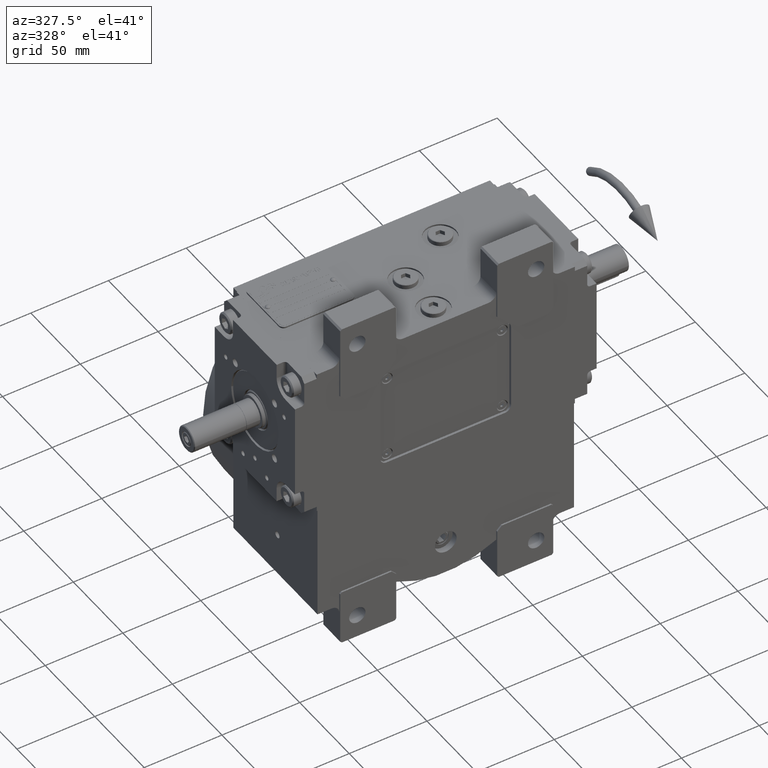
[diagram: clean part render]
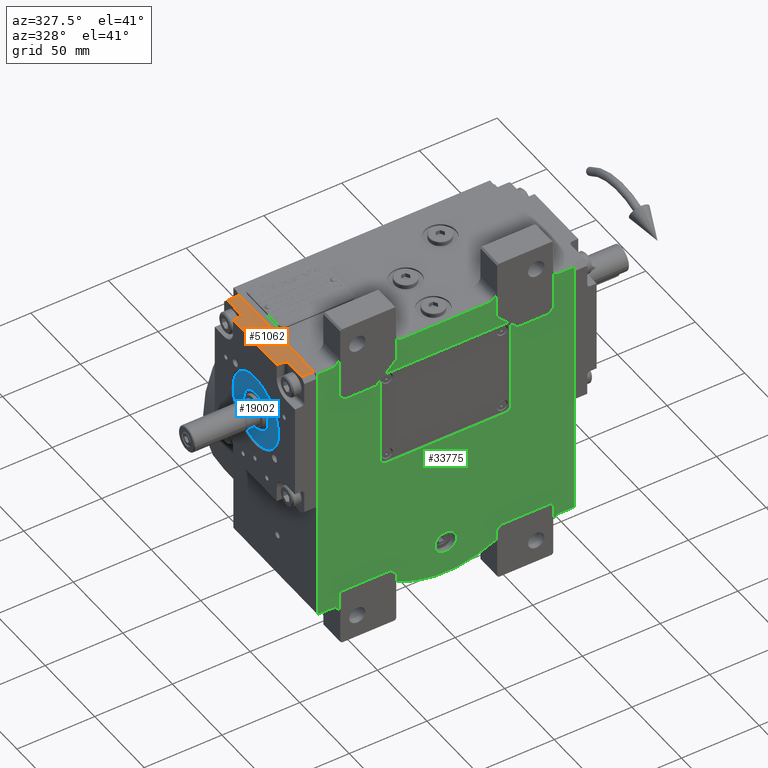
[diagram: same view with three faces highlighted in distinct colors, each labeled with its STEP entity id]
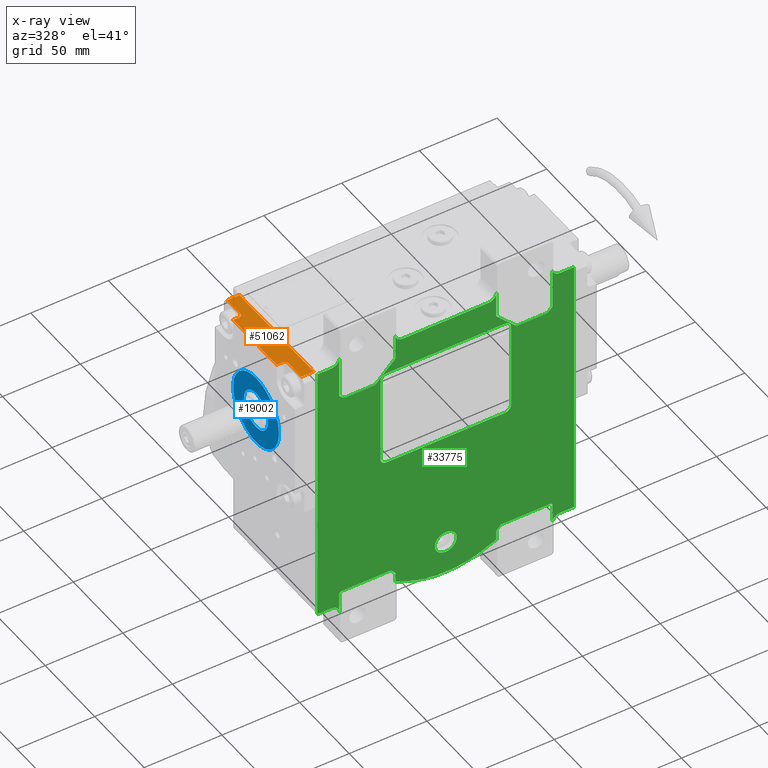
[diagram: x-ray of the same camera — body ghosted, the three highlighted faces saturated]
A machine part, auxiliary view with three faces highlighted in distinct colors.
The next image is the same camera in x-ray (body ghosted, the three faces saturated) — at least one of them is partly hidden behind the body in this view.
Their STEP definitions:

[orange] entity #51062 — the highlighted planar face has unit normal (-0, 0, 1).
#42 = DIRECTION ( 'NONE',  ( 5.503425921419128482E-29, 1.000000000000000000, 4.218847493575605898E-15 ) ) ;
#175 = EDGE_CURVE ( 'NONE', #54161, #31840, #2048, .T. ) ;
#1109 = VECTOR ( 'NONE', #20515, 1000.000000000000000 ) ;
#1731 = CARTESIAN_POINT ( 'NONE',  ( 21.99999999999854694, -14.00000000000052580, -48.99999999999947420 ) ) ;
#2002 = CIRCLE ( 'NONE', #35003, 2.000000000000001776 ) ;
#2048 = LINE ( 'NONE', #61549, #58888 ) ;
#3110 = CARTESIAN_POINT ( 'NONE',  ( 37.49999999999867839, -8.000000000000520473, -48.99999999999894840 ) ) ;
#3578 = ORIENTED_EDGE ( 'NONE', *, *, #175, .T. ) ;
#6250 = LINE ( 'NONE', #30508, #63441 ) ;
#6563 = EDGE_CURVE ( 'NONE', #52314, #24718, #18742, .T. ) ;
#7068 = VECTOR ( 'NONE', #31992, 1000.000000000000000 ) ;
#8079 = DIRECTION ( 'NONE',  ( -1.000000000000000000, -5.501979271014792412E-29, -3.164135620181695509E-14 ) ) ;
#9152 = ORIENTED_EDGE ( 'NONE', *, *, #53558, .T. ) ;
#9455 = LINE ( 'NONE', #49205, #51422 ) ;
#9891 = CARTESIAN_POINT ( 'NONE',  ( -22.00000000000144951, -14.00000000000052580, -49.00000000000104450 ) ) ;
#11778 = ORIENTED_EDGE ( 'NONE', *, *, #53126, .T. ) ;
#12065 = DIRECTION ( 'NONE',  ( -1.000000000000000000, -5.501979271014792412E-29, -3.164135620181695509E-14 ) ) ;
#12926 = DIRECTION ( 'NONE',  ( 1.000000000000000000, 1.734723475976805517E-15, 3.122502256758250246E-14 ) ) ;
#13230 = LINE ( 'NONE', #32954, #57290 ) ;
#13255 = CARTESIAN_POINT ( 'NONE',  ( -24.00000000000144951, -10.00000000000052225, -49.00000000000104450 ) ) ;
#13543 = LINE ( 'NONE', #33281, #7068 ) ;
#14240 = EDGE_CURVE ( 'NONE', #54161, #15742, #59849, .T. ) ;
#15328 = LINE ( 'NONE', #50287, #1109 ) ;
#15742 = VERTEX_POINT ( 'NONE', #25669 ) ;
#16411 = CARTESIAN_POINT ( 'NONE',  ( -24.00000000000144951, -8.000000000000520473, -49.00000000000104450 ) ) ;
#16732 = VECTOR ( 'NONE', #32362, 1000.000000000000000 ) ;
#17861 = ORIENTED_EDGE ( 'NONE', *, *, #6563, .T. ) ;
#18092 = DIRECTION ( 'NONE',  ( 0.000000000000000000, 1.000000000000000000, 3.469446951953614189E-15 ) ) ;
#18742 = LINE ( 'NONE', #56933, #16732 ) ;
#18937 = EDGE_CURVE ( 'NONE', #35370, #36454, #13230, .T. ) ;
#20115 = ORIENTED_EDGE ( 'NONE', *, *, #45024, .T. ) ;
#20515 = DIRECTION ( 'NONE',  ( -5.503425921419128482E-29, -1.000000000000000000, -4.218847493575605898E-15 ) ) ;
#21186 = ORIENTED_EDGE ( 'NONE', *, *, #42472, .F. ) ;
#22470 = EDGE_CURVE ( 'NONE', #40587, #24718, #15328, .T. ) ;
#24718 = VERTEX_POINT ( 'NONE', #54344 ) ;
#25669 = CARTESIAN_POINT ( 'NONE',  ( 21.99999999999854694, -10.00000000000052225, -48.99999999999894840 ) ) ;
#27243 = VERTEX_POINT ( 'NONE', #58243 ) ;
#27287 = CARTESIAN_POINT ( 'NONE',  ( 40.49999999999868550, -5.273559366969493567E-13, -48.99999999999894840 ) ) ;
#27575 = CARTESIAN_POINT ( 'NONE',  ( -22.00000000000144951, -10.00000000000052225, -49.00000000000104450 ) ) ;
#27913 = ORIENTED_EDGE ( 'NONE', *, *, #34212, .T. ) ;
#28394 = EDGE_LOOP ( 'NONE', ( #37222, #21186, #11778, #56869, #9152, #59932, #3578, #20115, #27913, #17861 ) ) ;
#30508 = CARTESIAN_POINT ( 'NONE',  ( 37.49999999999867839, -5.273559366969493567E-13, -48.99999999999894840 ) ) ;
#31281 = AXIS2_PLACEMENT_3D ( 'NONE', #27287, #32764, #62514 ) ;
#31496 = CIRCLE ( 'NONE', #61467, 2.000000000000000000 ) ;
#31840 = VERTEX_POINT ( 'NONE', #9891 ) ;
#31992 = DIRECTION ( 'NONE',  ( 5.503425921419128482E-29, 1.000000000000000000, 4.218847493575605898E-15 ) ) ;
#32362 = DIRECTION ( 'NONE',  ( -1.000000000000000000, -5.501979271014792412E-29, -3.164135620181695509E-14 ) ) ;
#32764 = DIRECTION ( 'NONE',  ( 3.164135620181695509E-14, -4.218847493575605898E-15, -1.000000000000000000 ) ) ;
#32954 = CARTESIAN_POINT ( 'NONE',  ( 37.49999999999867839, -8.000000000000520473, -48.99999999999894840 ) ) ;
#33281 = CARTESIAN_POINT ( 'NONE',  ( -22.00000000000144951, -14.00000000000052580, -49.00000000000104450 ) ) ;
#34212 = EDGE_CURVE ( 'NONE', #54410, #52314, #2002, .T. ) ;
#35003 = AXIS2_PLACEMENT_3D ( 'NONE', #13255, #41746, #12926 ) ;
#35370 = VERTEX_POINT ( 'NONE', #3110 ) ;
#36454 = VERTEX_POINT ( 'NONE', #42596 ) ;
#36980 = FACE_OUTER_BOUND ( 'NONE', #28394, .T. ) ;
#37222 = ORIENTED_EDGE ( 'NONE', *, *, #22470, .F. ) ;
#40587 = VERTEX_POINT ( 'NONE', #62884 ) ;
#41746 = DIRECTION ( 'NONE',  ( 3.164135620181695509E-14, 4.218847493575605898E-15, 1.000000000000000000 ) ) ;
#41843 = PLANE ( 'NONE',  #31281 ) ;
#42472 = EDGE_CURVE ( 'NONE', #27243, #40587, #9455, .T. ) ;
#42596 = CARTESIAN_POINT ( 'NONE',  ( 23.99999999999855049, -8.000000000000520473, -48.99999999999896261 ) ) ;
#43009 = CARTESIAN_POINT ( 'NONE',  ( 23.99999999999855049, -10.00000000000052225, -48.99999999999896261 ) ) ;
#45024 = EDGE_CURVE ( 'NONE', #31840, #54410, #13543, .T. ) ;
#48477 = DIRECTION ( 'NONE',  ( 3.164135620181695509E-14, 4.218847493575605898E-15, 1.000000000000000000 ) ) ;
#49205 = CARTESIAN_POINT ( 'NONE',  ( 37.49999999999867839, -5.273559366969493567E-13, -48.99999999999894840 ) ) ;
#50287 = CARTESIAN_POINT ( 'NONE',  ( -37.50000000000131450, -5.273559366969493567E-13, -49.00000000000105871 ) ) ;
#51012 = VECTOR ( 'NONE', #42, 1000.000000000000000 ) ;
#51062 = ADVANCED_FACE ( 'NONE', ( #36980 ), #41843, .T. ) ;
#51422 = VECTOR ( 'NONE', #54383, 1000.000000000000000 ) ;
#52314 = VERTEX_POINT ( 'NONE', #16411 ) ;
#53126 = EDGE_CURVE ( 'NONE', #27243, #35370, #6250, .T. ) ;
#53558 = EDGE_CURVE ( 'NONE', #36454, #15742, #31496, .T. ) ;
#54161 = VERTEX_POINT ( 'NONE', #1731 ) ;
#54344 = CARTESIAN_POINT ( 'NONE',  ( -37.50000000000131450, -8.000000000000520473, -49.00000000000105871 ) ) ;
#54383 = DIRECTION ( 'NONE',  ( -1.000000000000000000, -5.501979271014792412E-29, -3.164135620181695509E-14 ) ) ;
#54410 = VERTEX_POINT ( 'NONE', #27575 ) ;
#55095 = DIRECTION ( 'NONE',  ( -5.503425921419128482E-29, -1.000000000000000000, -4.218847493575605898E-15 ) ) ;
#56869 = ORIENTED_EDGE ( 'NONE', *, *, #18937, .T. ) ;
#56933 = CARTESIAN_POINT ( 'NONE',  ( -24.00000000000144951, -8.000000000000520473, -49.00000000000104450 ) ) ;
#57290 = VECTOR ( 'NONE', #8079, 1000.000000000000000 ) ;
#58243 = CARTESIAN_POINT ( 'NONE',  ( 37.49999999999867839, -5.273559366969493567E-13, -48.99999999999894840 ) ) ;
#58888 = VECTOR ( 'NONE', #12065, 1000.000000000000000 ) ;
#58893 = CARTESIAN_POINT ( 'NONE',  ( 21.99999999999854694, -14.00000000000052580, -48.99999999999947420 ) ) ;
#59849 = LINE ( 'NONE', #58893, #51012 ) ;
#59932 = ORIENTED_EDGE ( 'NONE', *, *, #14240, .F. ) ;
#61467 = AXIS2_PLACEMENT_3D ( 'NONE', #43009, #48477, #18092 ) ;
#61549 = CARTESIAN_POINT ( 'NONE',  ( 21.99999999999854694, -14.00000000000052580, -48.99999999999947420 ) ) ;
#62514 = DIRECTION ( 'NONE',  ( -1.000000000000000000, -5.501979271014792412E-29, -3.164135620181695509E-14 ) ) ;
#62884 = CARTESIAN_POINT ( 'NONE',  ( -37.50000000000131450, -5.273559366969493567E-13, -49.00000000000105871 ) ) ;
#63441 = VECTOR ( 'NONE', #55095, 1000.000000000000000 ) ;

[blue] entity #19002 — the highlighted planar face has unit normal (1, -0, 0).
#179 = EDGE_LOOP ( 'NONE', ( #12957, #15319 ) ) ;
#3200 = CARTESIAN_POINT ( 'NONE',  ( 0.000000000000000000, 7.000000000000006217, 3.491927662888562069E-14 ) ) ;
#5959 = EDGE_CURVE ( 'NONE', #29982, #28699, #44688, .T. ) ;
#7563 = CARTESIAN_POINT ( 'NONE',  ( -23.09585401869729182, 6.999999542325357815, -2.173323981794039651E-08 ) ) ;
#8729 = AXIS2_PLACEMENT_3D ( 'NONE', #28845, #44345, #39487 ) ;
#8787 = AXIS2_PLACEMENT_3D ( 'NONE', #53970, #50078, #58488 ) ;
#10316 = CARTESIAN_POINT ( 'NONE',  ( -13.52923972676702213, 7.000000000000004441, 23.09585493640610210 ) ) ;
#11802 = CARTESIAN_POINT ( 'NONE',  ( -2.619432448724978713E-13, 7.000000000000069278, -23.09585494913709880 ) ) ;
#12120 = CARTESIAN_POINT ( 'NONE',  ( 12.04009600442775074, 7.000000000000533795, 5.986840029364926805E-14 ) ) ;
#12386 = CARTESIAN_POINT ( 'NONE',  ( -13.52923841247534931, 7.000000000000130562, -23.09585443615133116 ) ) ;
#12957 = ORIENTED_EDGE ( 'NONE', *, *, #56852, .F. ) ;
#14489 = FACE_OUTER_BOUND ( 'NONE', #50416, .T. ) ;
#15319 = ORIENTED_EDGE ( 'NONE', *, *, #45067, .T. ) ;
#15941 = CIRCLE ( 'NONE', #8729, 12.04009600442783778 ) ;
#16437 = CARTESIAN_POINT ( 'NONE',  ( -23.09585401869729182, 6.999999542325357815, -2.173323981794039651E-08 ) ) ;
#17411 = AXIS2_PLACEMENT_3D ( 'NONE', #3200, #51744, #22925 ) ;
#18872 = CARTESIAN_POINT ( 'NONE',  ( -23.09585401869729182, 6.999999542325357815, -2.173323981794039651E-08 ) ) ;
#19002 = ADVANCED_FACE ( 'NONE', ( #14489, #19025 ), #24521, .F. ) ;
#19025 = FACE_BOUND ( 'NONE', #179, .T. ) ;
#22135 = CARTESIAN_POINT ( 'NONE',  ( 23.09585401869739840, 6.999999542325857860, 2.173331782437690894E-08 ) ) ;
#22925 = DIRECTION ( 'NONE',  ( 1.000000000000000000, 0.000000000000000000, 2.072169827847577574E-15 ) ) ;
#24390 = ORIENTED_EDGE ( 'NONE', *, *, #43053, .T. ) ;
#24521 = PLANE ( 'NONE',  #8787 ) ;
#25515 = CARTESIAN_POINT ( 'NONE',  ( 23.09585468350323723, 6.999999999999864109, 13.52923853397943077 ) ) ;
#28699 = VERTEX_POINT ( 'NONE', #18872 ) ;
#28845 = CARTESIAN_POINT ( 'NONE',  ( 0.000000000000000000, 7.000000000000006217, 3.669563346828587115E-14 ) ) ;
#29982 = VERTEX_POINT ( 'NONE', #48955 ) ;
#32111 = CARTESIAN_POINT ( 'NONE',  ( -23.09585468350323012, 7.000000000000148326, -13.52923811714202884 ) ) ;
#32153 = CARTESIAN_POINT ( 'NONE',  ( 23.09585573493666999, 6.999999999999936939, -13.52923890735006651 ) ) ;
#32584 = ORIENTED_EDGE ( 'NONE', *, *, #5959, .T. ) ;
#32896 = ORIENTED_EDGE ( 'NONE', *, *, #63394, .T. ) ;
#36192 = CARTESIAN_POINT ( 'NONE',  ( -8.974545794016020039E-07, 6.999999999999943157, 23.09585494913718051 ) ) ;
#36722 = VERTEX_POINT ( 'NONE', #49337 ) ;
#39109 = VERTEX_POINT ( 'NONE', #12120 ) ;
#39117 = CIRCLE ( 'NONE', #17411, 12.04009600442785732 ) ;
#39487 = DIRECTION ( 'NONE',  ( 1.000000000000000000, 0.000000000000000000, 1.924633060802946923E-15 ) ) ;
#40388 = CARTESIAN_POINT ( 'NONE',  ( 13.52923793185785861, 6.999999999999880984, 23.09585496186825893 ) ) ;
#41758 = VERTEX_POINT ( 'NONE', #45550 ) ;
#43053 = EDGE_CURVE ( 'NONE', #28699, #36722, #55852, .T. ) ;
#44345 = DIRECTION ( 'NONE',  ( -2.153350692136840485E-17, 1.000000000000000000, 5.115350721226503239E-15 ) ) ;
#44688 =( BOUNDED_CURVE ( )  B_SPLINE_CURVE ( 3, ( #46679, #12386, #32111, #7563 ),
 .UNSPECIFIED., .F., .F. ) 
 B_SPLINE_CURVE_WITH_KNOTS ( ( 4, 4 ),
 ( 1.062202122874949861, 2.632998440204151525 ),
 .UNSPECIFIED. ) 
 CURVE ( )  GEOMETRIC_REPRESENTATION_ITEM ( )  RATIONAL_B_SPLINE_CURVE ( ( 1.000000000000000000, 0.8047378563554508091, 0.8047378563554508091, 1.000000000000000000 ) ) 
 REPRESENTATION_ITEM ( '' )  );
#44914 = CARTESIAN_POINT ( 'NONE',  ( 23.09585401869739840, 6.999999542325857860, 2.173331782437690894E-08 ) ) ;
#45067 = EDGE_CURVE ( 'NONE', #39109, #41758, #39117, .T. ) ;
#45550 = CARTESIAN_POINT ( 'NONE',  ( -12.04009600442772232, 7.000000000000006217, 1.125501430241480801E-14 ) ) ;
#46679 = CARTESIAN_POINT ( 'NONE',  ( -2.619432448724978713E-13, 7.000000000000069278, -23.09585494913709880 ) ) ;
#48955 = CARTESIAN_POINT ( 'NONE',  ( -2.619432448724978713E-13, 7.000000000000069278, -23.09585494913709880 ) ) ;
#49337 = CARTESIAN_POINT ( 'NONE',  ( 23.09585401869739840, 6.999999542325857860, 2.173331782437690894E-08 ) ) ;
#49788 = CARTESIAN_POINT ( 'NONE',  ( -23.09585573493668065, 7.000000000000073719, 13.52923849051281024 ) ) ;
#50078 = DIRECTION ( 'NONE',  ( -2.052305267934736786E-16, -1.000000000000000000, -5.115350721226506394E-15 ) ) ;
#50416 = EDGE_LOOP ( 'NONE', ( #32896, #32584, #24390 ) ) ;
#51744 = DIRECTION ( 'NONE',  ( 2.153350692136840485E-17, -1.000000000000000000, -5.115350721226503239E-15 ) ) ;
#53018 =( BOUNDED_CURVE ( )  B_SPLINE_CURVE ( 3, ( #22135, #32153, #57053, #11802 ),
 .UNSPECIFIED., .F., .F. ) 
 B_SPLINE_CURVE_WITH_KNOTS ( ( 4, 4 ),
 ( 5.774591035009672524, 7.345387430054536537 ),
 .UNSPECIFIED. ) 
 CURVE ( )  GEOMETRIC_REPRESENTATION_ITEM ( )  RATIONAL_B_SPLINE_CURVE ( ( 1.000000000000000000, 0.8047378380376930540, 0.8047378380376930540, 1.000000000000000000 ) ) 
 REPRESENTATION_ITEM ( '' )  );
#53970 = CARTESIAN_POINT ( 'NONE',  ( 0.000000000000000000, 7.000000000000006217, 3.580745504858574592E-14 ) ) ;
#55852 =( BOUNDED_CURVE ( )  B_SPLINE_CURVE ( 3, ( #16437, #49788, #10316, #36192, #40388, #25515, #44914 ),
 .UNSPECIFIED., .F., .F. ) 
 B_SPLINE_CURVE_WITH_KNOTS ( ( 4, 3, 4 ),
 ( 2.632998397732654983, 4.203794753919688709, 5.774591110106721992 ),
 .UNSPECIFIED. ) 
 CURVE ( )  GEOMETRIC_REPRESENTATION_ITEM ( )  RATIONAL_B_SPLINE_CURVE ( ( 1.000000000000000000, 0.8047378471965718205, 0.8047378471965718205, 1.000000000000000000, 0.8047378471965718205, 0.8047378471965718205, 1.000000000000000000 ) ) 
 REPRESENTATION_ITEM ( '' )  );
#56852 = EDGE_CURVE ( 'NONE', #39109, #41758, #15941, .T. ) ;
#57053 = CARTESIAN_POINT ( 'NONE',  ( 13.52923924614951012, 7.000000000000008882, -23.09585546212291263 ) ) ;
#58488 = DIRECTION ( 'NONE',  ( -1.000000000000000000, 2.052305267934839091E-16, -1.998401444325260474E-15 ) ) ;
#63394 = EDGE_CURVE ( 'NONE', #36722, #29982, #53018, .T. ) ;

[green] entity #33775 — the highlighted planar face has unit normal (0, 1, 0).
#129 = CARTESIAN_POINT ( 'NONE',  ( -45.49999999999939604, -40.50000000000000000, 89.00000000000000000 ) ) ;
#141 = CARTESIAN_POINT ( 'NONE',  ( -65.50000000000000000, -40.50000000000000000, 89.00000000000000000 ) ) ;
#316 = ORIENTED_EDGE ( 'NONE', *, *, #4600, .F. ) ;
#317 = ORIENTED_EDGE ( 'NONE', *, *, #10580, .F. ) ;
#403 = VECTOR ( 'NONE', #22274, 1000.000000000000000 ) ;
#542 = LINE ( 'NONE', #25764, #27534 ) ;
#1034 = CARTESIAN_POINT ( 'NONE',  ( 73.50000000000000000, -40.50000000000000000, 114.0000000000000000 ) ) ;
#1261 = ORIENTED_EDGE ( 'NONE', *, *, #28524, .T. ) ;
#1291 = EDGE_CURVE ( 'NONE', #62009, #18074, #41503, .T. ) ;
#1350 = DIRECTION ( 'NONE',  ( 1.000000000000000000, 0.000000000000000000, 0.000000000000000000 ) ) ;
#1512 = DIRECTION ( 'NONE',  ( 0.000000000000000000, 0.000000000000000000, 1.000000000000000000 ) ) ;
#1689 = LINE ( 'NONE', #1034, #44196 ) ;
#1808 = DIRECTION ( 'NONE',  ( 0.000000000000000000, -1.000000000000000000, 0.000000000000000000 ) ) ;
#1845 = DIRECTION ( 'NONE',  ( 0.000000000000000000, 1.000000000000000000, 0.000000000000000000 ) ) ;
#2005 = DIRECTION ( 'NONE',  ( 1.000000000000000000, 0.000000000000000000, 0.000000000000000000 ) ) ;
#2076 = CARTESIAN_POINT ( 'NONE',  ( -32.50000000000000000, -40.50000000000000000, -58.56853585160510534 ) ) ;
#2082 = DIRECTION ( 'NONE',  ( 0.000000000000000000, -1.000000000000000000, 0.000000000000000000 ) ) ;
#2122 = DIRECTION ( 'NONE',  ( 3.469446951953611033E-15, 0.000000000000000000, 1.000000000000000000 ) ) ;
#2144 = ORIENTED_EDGE ( 'NONE', *, *, #36641, .F. ) ;
#2195 = CARTESIAN_POINT ( 'NONE',  ( 7.000000000000000000, -40.50000000000000000, -45.00000000000000000 ) ) ;
#2343 = DIRECTION ( 'NONE',  ( 0.000000000000000000, 0.000000000000000000, -1.000000000000000000 ) ) ;
#2468 = VECTOR ( 'NONE', #41736, 1000.000000000000000 ) ;
#2550 = CARTESIAN_POINT ( 'NONE',  ( 68.50000000000000000, -40.50000000000000000, 92.00000000000000000 ) ) ;
#2619 = VERTEX_POINT ( 'NONE', #27225 ) ;
#2991 = LINE ( 'NONE', #22717, #49357 ) ;
#3074 = ORIENTED_EDGE ( 'NONE', *, *, #15504, .T. ) ;
#3258 = VERTEX_POINT ( 'NONE', #40675 ) ;
#3302 = CARTESIAN_POINT ( 'NONE',  ( -82.50000000000000000, -40.50000000000000000, -58.50000000000000000 ) ) ;
#3326 = VERTEX_POINT ( 'NONE', #30964 ) ;
#3396 = LINE ( 'NONE', #141, #34575 ) ;
#3419 = CARTESIAN_POINT ( 'NONE',  ( 68.50000000000000000, -40.50000000000000000, 92.00000000000000000 ) ) ;
#3937 = AXIS2_PLACEMENT_3D ( 'NONE', #47614, #8175, #52168 ) ;
#4454 = VERTEX_POINT ( 'NONE', #34865 ) ;
#4600 = EDGE_CURVE ( 'NONE', #52979, #52844, #18701, .T. ) ;
#4676 = VECTOR ( 'NONE', #20292, 1000.000000000000000 ) ;
#4983 = CARTESIAN_POINT ( 'NONE',  ( 82.50000000000000000, -40.50000000000000000, -58.50000000000000000 ) ) ;
#5095 = CARTESIAN_POINT ( 'NONE',  ( -32.49999999999934630, -40.50000000000000000, 102.0000000000000000 ) ) ;
#5678 = CARTESIAN_POINT ( 'NONE',  ( 32.49999999999934630, -40.50000000000000000, 102.0000000000000000 ) ) ;
#5699 = ORIENTED_EDGE ( 'NONE', *, *, #48896, .F. ) ;
#5971 = VECTOR ( 'NONE', #7260, 1000.000000000000000 ) ;
#6202 = AXIS2_PLACEMENT_3D ( 'NONE', #28971, #48696, #18612 ) ;
#6507 = CARTESIAN_POINT ( 'NONE',  ( 32.50000000000000000, -40.50000000000000000, -58.56853585160510534 ) ) ;
#6892 = DIRECTION ( 'NONE',  ( 0.000000000000000000, 1.000000000000000000, 0.000000000000000000 ) ) ;
#6894 = DIRECTION ( 'NONE',  ( 0.000000000000000000, 0.000000000000000000, 1.000000000000000000 ) ) ;
#6948 = CARTESIAN_POINT ( 'NONE',  ( 4.440892098500625176E-16, -40.50000000000000000, -45.00000000000000000 ) ) ;
#7260 = DIRECTION ( 'NONE',  ( 0.000000000000000000, 0.000000000000000000, -1.000000000000000000 ) ) ;
#7270 = DIRECTION ( 'NONE',  ( 1.000000000000000000, 0.000000000000000000, 0.000000000000000000 ) ) ;
#7401 = DIRECTION ( 'NONE',  ( 0.000000000000000000, 0.000000000000000000, -1.000000000000000000 ) ) ;
#7417 = CARTESIAN_POINT ( 'NONE',  ( 65.50000000000000000, -40.50000000000000000, 89.00000000000000000 ) ) ;
#7589 = VECTOR ( 'NONE', #29745, 1000.000000000000000 ) ;
#7606 = CARTESIAN_POINT ( 'NONE',  ( -38.00000000000000000, -40.50000000000000000, 30.00000000000000000 ) ) ;
#7614 = CARTESIAN_POINT ( 'NONE',  ( 32.49999999999934630, -40.50000000000000000, 119.0000000000000000 ) ) ;
#7735 = ORIENTED_EDGE ( 'NONE', *, *, #9354, .F. ) ;
#8036 = LINE ( 'NONE', #42946, #32295 ) ;
#8175 = DIRECTION ( 'NONE',  ( 0.000000000000000000, 1.000000000000000000, 0.000000000000000000 ) ) ;
#8279 = CARTESIAN_POINT ( 'NONE',  ( 38.00000000000000000, -40.50000000000000000, 90.00000000000000000 ) ) ;
#8825 = LINE ( 'NONE', #24002, #54747 ) ;
#8966 = VERTEX_POINT ( 'NONE', #24406 ) ;
#9025 = EDGE_CURVE ( 'NONE', #26988, #19217, #9604, .T. ) ;
#9204 = ORIENTED_EDGE ( 'NONE', *, *, #57557, .F. ) ;
#9211 = VERTEX_POINT ( 'NONE', #17899 ) ;
#9320 = EDGE_CURVE ( 'NONE', #4454, #57098, #11727, .T. ) ;
#9340 = CARTESIAN_POINT ( 'NONE',  ( -82.50000000000000000, -40.50000000000000000, 114.0000000000000000 ) ) ;
#9354 = EDGE_CURVE ( 'NONE', #23305, #61025, #19704, .T. ) ;
#9555 = CARTESIAN_POINT ( 'NONE',  ( 67.50000000000000000, -40.50000000000000000, -49.00000000000000000 ) ) ;
#9604 = CIRCLE ( 'NONE', #45742, 3.999999999999996447 ) ;
#9752 = EDGE_CURVE ( 'NONE', #9211, #20484, #22913, .T. ) ;
#10050 = VERTEX_POINT ( 'NONE', #55551 ) ;
#10474 = ORIENTED_EDGE ( 'NONE', *, *, #9752, .F. ) ;
#10556 = VECTOR ( 'NONE', #33168, 1000.000000000000114 ) ;
#10580 = EDGE_CURVE ( 'NONE', #2619, #52979, #52135, .T. ) ;
#10586 = EDGE_CURVE ( 'NONE', #23939, #8966, #51785, .T. ) ;
#11727 = CIRCLE ( 'NONE', #32359, 5.000000000000150990 ) ;
#11759 = CIRCLE ( 'NONE', #58230, 5.000000000000004441 ) ;
#12283 = VERTEX_POINT ( 'NONE', #32075 ) ;
#12536 = EDGE_CURVE ( 'NONE', #63000, #10050, #19652, .T. ) ;
#12618 = CIRCLE ( 'NONE', #31236, 3.999999999999996447 ) ;
#12652 = VERTEX_POINT ( 'NONE', #44887 ) ;
#12659 = AXIS2_PLACEMENT_3D ( 'NONE', #51527, #6892, #61226 ) ;
#12661 = VECTOR ( 'NONE', #29277, 1000.000000000000000 ) ;
#12807 = AXIS2_PLACEMENT_3D ( 'NONE', #43733, #19115, #14273 ) ;
#12840 = ORIENTED_EDGE ( 'NONE', *, *, #12536, .F. ) ;
#12848 = CARTESIAN_POINT ( 'NONE',  ( 32.50000000000000000, -40.50000000000000000, -52.00000000000000000 ) ) ;
#13236 = ORIENTED_EDGE ( 'NONE', *, *, #14530, .F. ) ;
#13346 = EDGE_LOOP ( 'NONE', ( #53641, #37133, #25553, #9204, #13236, #54230, #63525, #18758 ) ) ;
#13545 = EDGE_CURVE ( 'NONE', #3326, #28863, #24022, .T. ) ;
#13864 = CARTESIAN_POINT ( 'NONE',  ( -45.49999999999939604, -40.50000000000000000, 89.00000000000000000 ) ) ;
#13930 = CARTESIAN_POINT ( 'NONE',  ( -32.49999999999934630, -40.50000000000000000, 119.0000000000000000 ) ) ;
#14273 = DIRECTION ( 'NONE',  ( 0.000000000000000000, 0.000000000000000000, -1.000000000000000000 ) ) ;
#14415 = CARTESIAN_POINT ( 'NONE',  ( 82.50000000000000000, -40.50000000000000000, 114.0000000000000000 ) ) ;
#14530 = EDGE_CURVE ( 'NONE', #37822, #35923, #55976, .T. ) ;
#14823 = CARTESIAN_POINT ( 'NONE',  ( -32.50000000000000000, -40.50000000000000000, -52.00000000000000000 ) ) ;
#14997 = DIRECTION ( 'NONE',  ( -1.000000000000000000, 0.000000000000000000, 0.000000000000000000 ) ) ;
#15504 = EDGE_CURVE ( 'NONE', #2619, #50909, #3396, .T. ) ;
#15582 = CARTESIAN_POINT ( 'NONE',  ( 68.50000000000000000, -40.50000000000000000, -50.00000000000000000 ) ) ;
#15655 = ORIENTED_EDGE ( 'NONE', *, *, #62015, .F. ) ;
#15691 = CARTESIAN_POINT ( 'NONE',  ( 42.00000000000000000, -40.50000000000000000, 90.00000000000000000 ) ) ;
#15700 = ORIENTED_EDGE ( 'NONE', *, *, #18203, .F. ) ;
#15752 = CIRCLE ( 'NONE', #16779, 67.00000000000004263 ) ;
#15954 = CARTESIAN_POINT ( 'NONE',  ( -68.50000000000000000, -40.50000000000000000, -63.50000000000000000 ) ) ;
#16052 = ORIENTED_EDGE ( 'NONE', *, *, #35457, .T. ) ;
#16061 = DIRECTION ( 'NONE',  ( 0.000000000000000000, 0.000000000000000000, 1.000000000000000000 ) ) ;
#16358 = VERTEX_POINT ( 'NONE', #57800 ) ;
#16779 = AXIS2_PLACEMENT_3D ( 'NONE', #62934, #50217, #53241 ) ;
#17067 = DIRECTION ( 'NONE',  ( 0.000000000000000000, 0.000000000000000000, -1.000000000000000000 ) ) ;
#17348 = ORIENTED_EDGE ( 'NONE', *, *, #41829, .F. ) ;
#17502 = DIRECTION ( 'NONE',  ( 1.000000000000000000, 0.000000000000000000, 0.000000000000000000 ) ) ;
#17508 = CARTESIAN_POINT ( 'NONE',  ( 68.50000000000000000, -40.50000000000000000, -63.50000000000000000 ) ) ;
#17868 = FACE_BOUND ( 'NONE', #26003, .T. ) ;
#17899 = CARTESIAN_POINT ( 'NONE',  ( 68.50000000000000000, -40.50000000000000000, 92.00000000000000000 ) ) ;
#18074 = VERTEX_POINT ( 'NONE', #41282 ) ;
#18203 = EDGE_CURVE ( 'NONE', #3326, #24313, #37242, .T. ) ;
#18584 = EDGE_CURVE ( 'NONE', #18761, #26988, #49827, .T. ) ;
#18612 = DIRECTION ( 'NONE',  ( 1.000000000000000000, 0.000000000000000000, 0.000000000000000000 ) ) ;
#18701 = LINE ( 'NONE', #13864, #4676 ) ;
#18758 = ORIENTED_EDGE ( 'NONE', *, *, #10586, .F. ) ;
#18761 = VERTEX_POINT ( 'NONE', #21344 ) ;
#18782 = CARTESIAN_POINT ( 'NONE',  ( -4.440892098500625176E-16, -40.50000000000000000, -45.00000000000000000 ) ) ;
#18951 = DIRECTION ( 'NONE',  ( 0.7071067811865474617, 0.000000000000000000, -0.7071067811865474617 ) ) ;
#19115 = DIRECTION ( 'NONE',  ( 0.000000000000000000, 1.000000000000000000, 0.000000000000000000 ) ) ;
#19217 = VERTEX_POINT ( 'NONE', #28031 ) ;
#19318 = VECTOR ( 'NONE', #56347, 1000.000000000000000 ) ;
#19492 = EDGE_CURVE ( 'NONE', #47522, #12283, #44821, .T. ) ;
#19652 = LINE ( 'NONE', #9340, #38508 ) ;
#19704 = LINE ( 'NONE', #20032, #7589 ) ;
#19771 = AXIS2_PLACEMENT_3D ( 'NONE', #56950, #56639, #43049 ) ;
#20032 = CARTESIAN_POINT ( 'NONE',  ( 45.49999999999939604, -40.50000000000000000, 89.00000000000000000 ) ) ;
#20077 = VECTOR ( 'NONE', #2343, 1000.000000000000000 ) ;
#20185 = ORIENTED_EDGE ( 'NONE', *, *, #50885, .F. ) ;
#20292 = DIRECTION ( 'NONE',  ( 0.7071067811865480168, 0.000000000000000000, 0.7071067811865470176 ) ) ;
#20484 = VERTEX_POINT ( 'NONE', #31317 ) ;
#20503 = VECTOR ( 'NONE', #7270, 1000.000000000000000 ) ;
#20733 = VECTOR ( 'NONE', #22676, 1000.000000000000000 ) ;
#21344 = CARTESIAN_POINT ( 'NONE',  ( -42.00000000000000000, -40.50000000000000000, 90.00000000000000000 ) ) ;
#21490 = LINE ( 'NONE', #61579, #37078 ) ;
#21668 = EDGE_CURVE ( 'NONE', #28656, #24313, #8825, .T. ) ;
#22130 = DIRECTION ( 'NONE',  ( 0.7071067811865474617, 0.000000000000000000, 0.7071067811865474617 ) ) ;
#22189 = DIRECTION ( 'NONE',  ( 1.000000000000000000, 0.000000000000000000, 3.469446951953617344E-15 ) ) ;
#22274 = DIRECTION ( 'NONE',  ( 0.000000000000000000, 0.000000000000000000, 1.000000000000000000 ) ) ;
#22520 = CARTESIAN_POINT ( 'NONE',  ( -35.50000000000000000, -40.50000000000000000, -49.00000000000000000 ) ) ;
#22676 = DIRECTION ( 'NONE',  ( 1.000000000000000000, 0.000000000000000000, 0.000000000000000000 ) ) ;
#22717 = CARTESIAN_POINT ( 'NONE',  ( -35.50000000000000000, -40.50000000000000000, -49.00000000000000000 ) ) ;
#22913 = LINE ( 'NONE', #2550, #403 ) ;
#23251 = CARTESIAN_POINT ( 'NONE',  ( -68.50000000000000000, -40.50000000000000000, 119.0000000000000000 ) ) ;
#23302 = ORIENTED_EDGE ( 'NONE', *, *, #1291, .T. ) ;
#23305 = VERTEX_POINT ( 'NONE', #37543 ) ;
#23389 = EDGE_CURVE ( 'NONE', #34601, #16358, #25217, .T. ) ;
#23670 = ORIENTED_EDGE ( 'NONE', *, *, #36182, .F. ) ;
#23939 = VERTEX_POINT ( 'NONE', #27924 ) ;
#23952 = CIRCLE ( 'NONE', #34292, 7.000000000000000000 ) ;
#23999 = EDGE_CURVE ( 'NONE', #60177, #38217, #23952, .T. ) ;
#24002 = CARTESIAN_POINT ( 'NONE',  ( 67.50000000000000000, -40.50000000000000000, -49.00000000000000000 ) ) ;
#24022 = CIRCLE ( 'NONE', #12659, 5.000000000000004441 ) ;
#24313 = VERTEX_POINT ( 'NONE', #15582 ) ;
#24406 = CARTESIAN_POINT ( 'NONE',  ( 42.00000000000000000, -40.50000000000000000, 34.00000000000000000 ) ) ;
#24511 = LINE ( 'NONE', #5095, #29801 ) ;
#24674 = VERTEX_POINT ( 'NONE', #13930 ) ;
#25184 = CARTESIAN_POINT ( 'NONE',  ( -27.49999999999934630, -40.50000000000000000, 114.0000000000000000 ) ) ;
#25217 = LINE ( 'NONE', #59489, #37341 ) ;
#25239 = CARTESIAN_POINT ( 'NONE',  ( -42.00000000000000000, -40.50000000000000000, 90.00000000000000000 ) ) ;
#25307 = ORIENTED_EDGE ( 'NONE', *, *, #23999, .F. ) ;
#25510 = ORIENTED_EDGE ( 'NONE', *, *, #59906, .T. ) ;
#25553 = ORIENTED_EDGE ( 'NONE', *, *, #18584, .F. ) ;
#25764 = CARTESIAN_POINT ( 'NONE',  ( 42.00000000000000000, -40.50000000000000000, 34.00000000000000000 ) ) ;
#25841 = VERTEX_POINT ( 'NONE', #7614 ) ;
#25918 = LINE ( 'NONE', #60529, #59424 ) ;
#26003 = EDGE_LOOP ( 'NONE', ( #23670, #25307 ) ) ;
#26574 = VECTOR ( 'NONE', #17067, 1000.000000000000000 ) ;
#26699 = EDGE_CURVE ( 'NONE', #26864, #34352, #54581, .T. ) ;
#26864 = VERTEX_POINT ( 'NONE', #22520 ) ;
#26968 = EDGE_CURVE ( 'NONE', #18074, #4454, #15752, .T. ) ;
#26988 = VERTEX_POINT ( 'NONE', #57757 ) ;
#27225 = CARTESIAN_POINT ( 'NONE',  ( -65.50000000000000000, -40.50000000000000000, 89.00000000000000000 ) ) ;
#27227 = DIRECTION ( 'NONE',  ( 0.000000000000000000, -1.000000000000000000, 0.000000000000000000 ) ) ;
#27534 = VECTOR ( 'NONE', #1512, 1000.000000000000000 ) ;
#27600 = DIRECTION ( 'NONE',  ( 0.000000000000000000, 1.000000000000000000, 0.000000000000000000 ) ) ;
#27924 = CARTESIAN_POINT ( 'NONE',  ( 38.00000000000000000, -40.50000000000000000, 30.00000000000000000 ) ) ;
#28031 = CARTESIAN_POINT ( 'NONE',  ( -38.00000000000000000, -40.50000000000000000, 30.00000000000000000 ) ) ;
#28524 = EDGE_CURVE ( 'NONE', #51779, #10050, #11759, .T. ) ;
#28656 = VERTEX_POINT ( 'NONE', #61904 ) ;
#28863 = VERTEX_POINT ( 'NONE', #50230 ) ;
#28971 = CARTESIAN_POINT ( 'NONE',  ( 27.49999999999934630, -40.50000000000000000, 119.0000000000000000 ) ) ;
#29015 = EDGE_CURVE ( 'NONE', #51779, #50909, #46324, .T. ) ;
#29174 = DIRECTION ( 'NONE',  ( 0.7071067811865474617, 0.000000000000000000, -0.7071067811865474617 ) ) ;
#29277 = DIRECTION ( 'NONE',  ( -1.000000000000000000, 0.000000000000000000, 0.000000000000000000 ) ) ;
#29392 = ORIENTED_EDGE ( 'NONE', *, *, #21668, .T. ) ;
#29694 = DIRECTION ( 'NONE',  ( 1.000000000000000000, 0.000000000000000000, 0.000000000000000000 ) ) ;
#29745 = DIRECTION ( 'NONE',  ( 1.000000000000000000, 0.000000000000000000, 0.000000000000000000 ) ) ;
#29773 = VERTEX_POINT ( 'NONE', #15691 ) ;
#29801 = VECTOR ( 'NONE', #53962, 1000.000000000000000 ) ;
#30463 = VERTEX_POINT ( 'NONE', #53437 ) ;
#30964 = CARTESIAN_POINT ( 'NONE',  ( 68.50000000000000000, -40.50000000000000000, -63.50000000000000000 ) ) ;
#31044 = ORIENTED_EDGE ( 'NONE', *, *, #41021, .T. ) ;
#31119 = ORIENTED_EDGE ( 'NONE', *, *, #26968, .T. ) ;
#31236 = AXIS2_PLACEMENT_3D ( 'NONE', #8279, #32209, #22189 ) ;
#31317 = CARTESIAN_POINT ( 'NONE',  ( 68.50000000000000000, -40.50000000000000000, 119.0000000000000000 ) ) ;
#31420 = CIRCLE ( 'NONE', #12807, 5.000000000000004441 ) ;
#31918 = VERTEX_POINT ( 'NONE', #5678 ) ;
#32058 = CARTESIAN_POINT ( 'NONE',  ( 38.00000000000000000, -40.50000000000000000, 34.00000000000000000 ) ) ;
#32075 = CARTESIAN_POINT ( 'NONE',  ( 82.50000000000000000, -40.50000000000000000, -58.50000000000000000 ) ) ;
#32209 = DIRECTION ( 'NONE',  ( 0.000000000000000000, -1.000000000000000000, 0.000000000000000000 ) ) ;
#32295 = VECTOR ( 'NONE', #7401, 1000.000000000000000 ) ;
#32359 = AXIS2_PLACEMENT_3D ( 'NONE', #57347, #27600, #47326 ) ;
#32385 = EDGE_LOOP ( 'NONE', ( #40726, #51588, #51082, #61353, #35322, #10474, #39375, #7735, #2144, #5699, #16052, #59143, #35298, #47536, #316, #317, #3074, #41910, #1261, #12840, #43848, #25510, #31044, #15655, #40507, #37603, #38057, #37850, #23302, #31119, #47868, #17348, #43357, #20185, #29392, #15700 ) ) ;
#32739 = PLANE ( 'NONE',  #60834 ) ;
#32747 = DIRECTION ( 'NONE',  ( -1.000000000000000000, 0.000000000000000000, 0.000000000000000000 ) ) ;
#33070 = CIRCLE ( 'NONE', #6202, 5.000000000000000888 ) ;
#33168 = DIRECTION ( 'NONE',  ( -0.7071067811865474617, 0.000000000000000000, -0.7071067811865474617 ) ) ;
#33389 = DIRECTION ( 'NONE',  ( 1.000000000000000000, 0.000000000000000000, 0.000000000000000000 ) ) ;
#33550 = AXIS2_PLACEMENT_3D ( 'NONE', #51615, #1808, #2122 ) ;
#33775 = ADVANCED_FACE ( 'NONE', ( #17868, #42782, #57955 ), #32739, .F. ) ;
#33854 = CIRCLE ( 'NONE', #3937, 4.999999999999997335 ) ;
#34292 = AXIS2_PLACEMENT_3D ( 'NONE', #6948, #2082, #56111 ) ;
#34352 = VERTEX_POINT ( 'NONE', #14823 ) ;
#34575 = VECTOR ( 'NONE', #59309, 1000.000000000000114 ) ;
#34601 = VERTEX_POINT ( 'NONE', #25184 ) ;
#34771 = AXIS2_PLACEMENT_3D ( 'NONE', #41931, #1845, #46459 ) ;
#34865 = CARTESIAN_POINT ( 'NONE',  ( 31.01078439078154858, -40.50000000000000000, -59.06781045751640136 ) ) ;
#35298 = ORIENTED_EDGE ( 'NONE', *, *, #61438, .T. ) ;
#35322 = ORIENTED_EDGE ( 'NONE', *, *, #56964, .T. ) ;
#35375 = CARTESIAN_POINT ( 'NONE',  ( 32.50000000000000000, -40.50000000000000000, -52.00000000000000000 ) ) ;
#35457 = EDGE_CURVE ( 'NONE', #25841, #16358, #33070, .T. ) ;
#35609 = CARTESIAN_POINT ( 'NONE',  ( 38.00000000000000000, -40.50000000000000000, 94.00000000000000000 ) ) ;
#35923 = VERTEX_POINT ( 'NONE', #48932 ) ;
#36182 = EDGE_CURVE ( 'NONE', #38217, #60177, #40364, .T. ) ;
#36581 = VERTEX_POINT ( 'NONE', #42908 ) ;
#36641 = EDGE_CURVE ( 'NONE', #31918, #23305, #47760, .T. ) ;
#36742 = CARTESIAN_POINT ( 'NONE',  ( 73.50000000000000000, -40.50000000000000000, 114.0000000000000000 ) ) ;
#37078 = VECTOR ( 'NONE', #22130, 1000.000000000000114 ) ;
#37133 = ORIENTED_EDGE ( 'NONE', *, *, #9025, .F. ) ;
#37242 = LINE ( 'NONE', #17508, #19318 ) ;
#37269 = DIRECTION ( 'NONE',  ( -0.000000000000000000, 1.000000000000000000, 0.000000000000000000 ) ) ;
#37341 = VECTOR ( 'NONE', #60155, 1000.000000000000000 ) ;
#37543 = CARTESIAN_POINT ( 'NONE',  ( 45.49999999999939604, -40.50000000000000000, 89.00000000000000000 ) ) ;
#37603 = ORIENTED_EDGE ( 'NONE', *, *, #42401, .F. ) ;
#37822 = VERTEX_POINT ( 'NONE', #50477 ) ;
#37850 = ORIENTED_EDGE ( 'NONE', *, *, #61290, .F. ) ;
#37870 = DIRECTION ( 'NONE',  ( -1.734723475976807094E-15, 0.000000000000000000, -1.000000000000000000 ) ) ;
#38057 = ORIENTED_EDGE ( 'NONE', *, *, #26699, .T. ) ;
#38217 = VERTEX_POINT ( 'NONE', #2195 ) ;
#38508 = VECTOR ( 'NONE', #29694, 1000.000000000000000 ) ;
#39332 = AXIS2_PLACEMENT_3D ( 'NONE', #18782, #43069, #17502 ) ;
#39375 = ORIENTED_EDGE ( 'NONE', *, *, #50687, .T. ) ;
#39713 = CIRCLE ( 'NONE', #33550, 4.000000000000003553 ) ;
#39956 = DIRECTION ( 'NONE',  ( -1.647635329298784785E-16, 0.000000000000000000, -1.000000000000000000 ) ) ;
#40364 = CIRCLE ( 'NONE', #39332, 7.000000000000000000 ) ;
#40507 = ORIENTED_EDGE ( 'NONE', *, *, #43859, .T. ) ;
#40675 = CARTESIAN_POINT ( 'NONE',  ( -73.50000000000000000, -40.50000000000000000, -58.50000000000000000 ) ) ;
#40726 = ORIENTED_EDGE ( 'NONE', *, *, #13545, .T. ) ;
#40882 = VERTEX_POINT ( 'NONE', #35375 ) ;
#40897 = CARTESIAN_POINT ( 'NONE',  ( -68.50000000000000000, -40.50000000000000000, -50.00000000000000000 ) ) ;
#41021 = EDGE_CURVE ( 'NONE', #3258, #48261, #33854, .T. ) ;
#41282 = CARTESIAN_POINT ( 'NONE',  ( -31.01078439078175109, -40.50000000000000000, -59.06781045751629478 ) ) ;
#41503 = CIRCLE ( 'NONE', #19771, 5.000000000000000000 ) ;
#41736 = DIRECTION ( 'NONE',  ( -1.000000000000000000, 0.000000000000000000, 0.000000000000000000 ) ) ;
#41829 = EDGE_CURVE ( 'NONE', #40882, #57098, #52328, .T. ) ;
#41910 = ORIENTED_EDGE ( 'NONE', *, *, #29015, .F. ) ;
#41931 = CARTESIAN_POINT ( 'NONE',  ( -27.49999999999934630, -40.50000000000000000, 119.0000000000000000 ) ) ;
#42401 = EDGE_CURVE ( 'NONE', #26864, #12652, #2991, .T. ) ;
#42629 = CARTESIAN_POINT ( 'NONE',  ( -68.50000000000000000, -40.50000000000000000, -50.00000000000000000 ) ) ;
#42782 = FACE_OUTER_BOUND ( 'NONE', #32385, .T. ) ;
#42829 = DIRECTION ( 'NONE',  ( 0.000000000000000000, 1.000000000000000000, 0.000000000000000000 ) ) ;
#42908 = CARTESIAN_POINT ( 'NONE',  ( 35.50000000000000000, -40.50000000000000000, -49.00000000000000000 ) ) ;
#42946 = CARTESIAN_POINT ( 'NONE',  ( 32.49999999999934630, -40.50000000000000000, 119.0000000000000000 ) ) ;
#43049 = DIRECTION ( 'NONE',  ( 0.1650044063769659508, 0.000000000000000000, 0.9862928296789877924 ) ) ;
#43069 = DIRECTION ( 'NONE',  ( 0.000000000000000000, -1.000000000000000000, 0.000000000000000000 ) ) ;
#43357 = ORIENTED_EDGE ( 'NONE', *, *, #45744, .T. ) ;
#43733 = CARTESIAN_POINT ( 'NONE',  ( 73.50000000000000000, -40.50000000000000000, 119.0000000000000000 ) ) ;
#43848 = ORIENTED_EDGE ( 'NONE', *, *, #53355, .F. ) ;
#43859 = EDGE_CURVE ( 'NONE', #55265, #12652, #21490, .T. ) ;
#44196 = VECTOR ( 'NONE', #2005, 1000.000000000000000 ) ;
#44821 = LINE ( 'NONE', #14415, #59698 ) ;
#44887 = CARTESIAN_POINT ( 'NONE',  ( -67.50000000000000000, -40.50000000000000000, -49.00000000000000000 ) ) ;
#45168 = EDGE_CURVE ( 'NONE', #52844, #24674, #24511, .T. ) ;
#45381 = CARTESIAN_POINT ( 'NONE',  ( 82.50000000000000000, -40.50000000000000000, 114.0000000000000000 ) ) ;
#45503 = LINE ( 'NONE', #50703, #62666 ) ;
#45742 = AXIS2_PLACEMENT_3D ( 'NONE', #46052, #59976, #50610 ) ;
#45744 = EDGE_CURVE ( 'NONE', #40882, #36581, #59356, .T. ) ;
#46052 = CARTESIAN_POINT ( 'NONE',  ( -38.00000000000000000, -40.50000000000000000, 34.00000000000000000 ) ) ;
#46324 = LINE ( 'NONE', #23251, #20077 ) ;
#46459 = DIRECTION ( 'NONE',  ( 0.000000000000000000, 0.000000000000000000, -1.000000000000000000 ) ) ;
#47326 = DIRECTION ( 'NONE',  ( -0.4628475282206209185, 0.000000000000000000, 0.8864379084967325406 ) ) ;
#47522 = VERTEX_POINT ( 'NONE', #45381 ) ;
#47536 = ORIENTED_EDGE ( 'NONE', *, *, #45168, .F. ) ;
#47606 = LINE ( 'NONE', #3302, #60412 ) ;
#47614 = CARTESIAN_POINT ( 'NONE',  ( -73.50000000000000000, -40.50000000000000000, -63.50000000000000000 ) ) ;
#47760 = LINE ( 'NONE', #48708, #50626 ) ;
#47868 = ORIENTED_EDGE ( 'NONE', *, *, #9320, .T. ) ;
#48024 = LINE ( 'NONE', #4983, #57093 ) ;
#48261 = VERTEX_POINT ( 'NONE', #15954 ) ;
#48696 = DIRECTION ( 'NONE',  ( 0.000000000000000000, 1.000000000000000000, 0.000000000000000000 ) ) ;
#48708 = CARTESIAN_POINT ( 'NONE',  ( 32.49999999999934630, -40.50000000000000000, 102.0000000000000000 ) ) ;
#48896 = EDGE_CURVE ( 'NONE', #25841, #31918, #8036, .T. ) ;
#48932 = CARTESIAN_POINT ( 'NONE',  ( -38.00000000000000000, -40.50000000000000000, 94.00000000000000000 ) ) ;
#49357 = VECTOR ( 'NONE', #32747, 1000.000000000000000 ) ;
#49454 = EDGE_CURVE ( 'NONE', #12283, #28863, #48024, .T. ) ;
#49827 = LINE ( 'NONE', #25239, #50100 ) ;
#50100 = VECTOR ( 'NONE', #58881, 1000.000000000000000 ) ;
#50217 = DIRECTION ( 'NONE',  ( 0.000000000000000000, -1.000000000000000000, 0.000000000000000000 ) ) ;
#50230 = CARTESIAN_POINT ( 'NONE',  ( 73.50000000000000000, -40.50000000000000000, -58.50000000000000000 ) ) ;
#50382 = DIRECTION ( 'NONE',  ( 0.7071067811865474617, 0.000000000000000000, -0.7071067811865474617 ) ) ;
#50477 = CARTESIAN_POINT ( 'NONE',  ( 38.00000000000000000, -40.50000000000000000, 94.00000000000000000 ) ) ;
#50602 = EDGE_CURVE ( 'NONE', #29773, #37822, #12618, .T. ) ;
#50610 = DIRECTION ( 'NONE',  ( -1.000000000000000000, 0.000000000000000000, 0.000000000000000000 ) ) ;
#50626 = VECTOR ( 'NONE', #18951, 1000.000000000000114 ) ;
#50635 = DIRECTION ( 'NONE',  ( 0.7071067811865474617, 0.000000000000000000, 0.7071067811865474617 ) ) ;
#50687 = EDGE_CURVE ( 'NONE', #9211, #61025, #62591, .T. ) ;
#50703 = CARTESIAN_POINT ( 'NONE',  ( -32.50000000000000000, -40.50000000000000000, -58.56853585160510534 ) ) ;
#50766 = CARTESIAN_POINT ( 'NONE',  ( -7.000000000000000000, -40.50000000000000000, -45.00000000000000000 ) ) ;
#50885 = EDGE_CURVE ( 'NONE', #28656, #36581, #53849, .T. ) ;
#50909 = VERTEX_POINT ( 'NONE', #51247 ) ;
#51082 = ORIENTED_EDGE ( 'NONE', *, *, #19492, .F. ) ;
#51247 = CARTESIAN_POINT ( 'NONE',  ( -68.50000000000000000, -40.50000000000000000, 92.00000000000000000 ) ) ;
#51527 = CARTESIAN_POINT ( 'NONE',  ( 73.50000000000000000, -40.50000000000000000, -63.50000000000000000 ) ) ;
#51574 = LINE ( 'NONE', #40897, #5971 ) ;
#51588 = ORIENTED_EDGE ( 'NONE', *, *, #49454, .F. ) ;
#51615 = CARTESIAN_POINT ( 'NONE',  ( -38.00000000000000000, -40.50000000000000000, 90.00000000000000000 ) ) ;
#51779 = VERTEX_POINT ( 'NONE', #58539 ) ;
#51785 = CIRCLE ( 'NONE', #60033, 4.000000000000000000 ) ;
#51817 = CARTESIAN_POINT ( 'NONE',  ( -65.50000000000000000, -40.50000000000000000, 89.00000000000000000 ) ) ;
#51908 = LINE ( 'NONE', #7606, #20503 ) ;
#51912 = DIRECTION ( 'NONE',  ( 1.000000000000000000, 0.000000000000000000, 0.000000000000000000 ) ) ;
#52135 = LINE ( 'NONE', #51817, #20733 ) ;
#52168 = DIRECTION ( 'NONE',  ( 0.000000000000000000, 0.000000000000000000, 1.000000000000000000 ) ) ;
#52328 = LINE ( 'NONE', #12848, #26574 ) ;
#52683 = CARTESIAN_POINT ( 'NONE',  ( -82.50000000000000000, -40.50000000000000000, 114.0000000000000000 ) ) ;
#52844 = VERTEX_POINT ( 'NONE', #57381 ) ;
#52979 = VERTEX_POINT ( 'NONE', #129 ) ;
#53241 = DIRECTION ( 'NONE',  ( -0.4628475282206227504, 0.000000000000000000, -0.8864379084967315414 ) ) ;
#53355 = EDGE_CURVE ( 'NONE', #30463, #63000, #47606, .T. ) ;
#53437 = CARTESIAN_POINT ( 'NONE',  ( -82.50000000000000000, -40.50000000000000000, -58.50000000000000000 ) ) ;
#53631 = VECTOR ( 'NONE', #50635, 1000.000000000000114 ) ;
#53641 = ORIENTED_EDGE ( 'NONE', *, *, #63266, .F. ) ;
#53849 = LINE ( 'NONE', #9555, #12661 ) ;
#53962 = DIRECTION ( 'NONE',  ( 0.000000000000000000, 0.000000000000000000, 1.000000000000000000 ) ) ;
#54094 = VECTOR ( 'NONE', #50382, 1000.000000000000114 ) ;
#54230 = ORIENTED_EDGE ( 'NONE', *, *, #50602, .F. ) ;
#54581 = LINE ( 'NONE', #60078, #54094 ) ;
#54747 = VECTOR ( 'NONE', #29174, 1000.000000000000114 ) ;
#55265 = VERTEX_POINT ( 'NONE', #42629 ) ;
#55551 = CARTESIAN_POINT ( 'NONE',  ( -73.50000000000000000, -40.50000000000000000, 114.0000000000000000 ) ) ;
#55976 = LINE ( 'NONE', #35609, #2468 ) ;
#56111 = DIRECTION ( 'NONE',  ( -1.000000000000000000, 0.000000000000000000, 0.000000000000000000 ) ) ;
#56347 = DIRECTION ( 'NONE',  ( 0.000000000000000000, 0.000000000000000000, 1.000000000000000000 ) ) ;
#56639 = DIRECTION ( 'NONE',  ( 0.000000000000000000, 1.000000000000000000, 0.000000000000000000 ) ) ;
#56950 = CARTESIAN_POINT ( 'NONE',  ( -33.32502203188484913, -40.50000000000000000, -63.50000000000000000 ) ) ;
#56964 = EDGE_CURVE ( 'NONE', #59571, #20484, #31420, .T. ) ;
#57093 = VECTOR ( 'NONE', #14997, 1000.000000000000000 ) ;
#57098 = VERTEX_POINT ( 'NONE', #6507 ) ;
#57347 = CARTESIAN_POINT ( 'NONE',  ( 33.32502203188480649, -40.50000000000000000, -63.50000000000000000 ) ) ;
#57381 = CARTESIAN_POINT ( 'NONE',  ( -32.49999999999934630, -40.50000000000000000, 102.0000000000000000 ) ) ;
#57490 = CIRCLE ( 'NONE', #34771, 5.000000000000004441 ) ;
#57557 = EDGE_CURVE ( 'NONE', #35923, #18761, #39713, .T. ) ;
#57757 = CARTESIAN_POINT ( 'NONE',  ( -42.00000000000000000, -40.50000000000000000, 34.00000000000000000 ) ) ;
#57800 = CARTESIAN_POINT ( 'NONE',  ( 27.49999999999934630, -40.50000000000000000, 114.0000000000000000 ) ) ;
#57955 = FACE_BOUND ( 'NONE', #13346, .T. ) ;
#58230 = AXIS2_PLACEMENT_3D ( 'NONE', #61289, #42829, #51912 ) ;
#58539 = CARTESIAN_POINT ( 'NONE',  ( -68.50000000000000000, -40.50000000000000000, 119.0000000000000000 ) ) ;
#58881 = DIRECTION ( 'NONE',  ( 0.000000000000000000, 0.000000000000000000, -1.000000000000000000 ) ) ;
#59143 = ORIENTED_EDGE ( 'NONE', *, *, #23389, .F. ) ;
#59309 = DIRECTION ( 'NONE',  ( -0.7071067811865474617, 0.000000000000000000, 0.7071067811865474617 ) ) ;
#59324 = EDGE_CURVE ( 'NONE', #8966, #29773, #542, .T. ) ;
#59356 = LINE ( 'NONE', #59678, #53631 ) ;
#59424 = VECTOR ( 'NONE', #1350, 1000.000000000000000 ) ;
#59489 = CARTESIAN_POINT ( 'NONE',  ( -27.49999999999934630, -40.50000000000000000, 114.0000000000000000 ) ) ;
#59571 = VERTEX_POINT ( 'NONE', #36742 ) ;
#59678 = CARTESIAN_POINT ( 'NONE',  ( 32.50000000000000000, -40.50000000000000000, -52.00000000000000000 ) ) ;
#59698 = VECTOR ( 'NONE', #39956, 1000.000000000000000 ) ;
#59906 = EDGE_CURVE ( 'NONE', #30463, #3258, #25918, .T. ) ;
#59976 = DIRECTION ( 'NONE',  ( 0.000000000000000000, -1.000000000000000000, 0.000000000000000000 ) ) ;
#60033 = AXIS2_PLACEMENT_3D ( 'NONE', #32058, #27227, #37870 ) ;
#60078 = CARTESIAN_POINT ( 'NONE',  ( -35.50000000000000000, -40.50000000000000000, -49.00000000000000000 ) ) ;
#60155 = DIRECTION ( 'NONE',  ( 1.000000000000000000, 0.000000000000000000, 0.000000000000000000 ) ) ;
#60177 = VERTEX_POINT ( 'NONE', #50766 ) ;
#60412 = VECTOR ( 'NONE', #6894, 1000.000000000000000 ) ;
#60529 = CARTESIAN_POINT ( 'NONE',  ( -82.50000000000000000, -40.50000000000000000, -58.50000000000000000 ) ) ;
#60834 = AXIS2_PLACEMENT_3D ( 'NONE', #62492, #37269, #33389 ) ;
#61025 = VERTEX_POINT ( 'NONE', #7417 ) ;
#61226 = DIRECTION ( 'NONE',  ( -1.000000000000000000, 0.000000000000000000, 0.000000000000000000 ) ) ;
#61289 = CARTESIAN_POINT ( 'NONE',  ( -73.50000000000000000, -40.50000000000000000, 119.0000000000000000 ) ) ;
#61290 = EDGE_CURVE ( 'NONE', #62009, #34352, #45503, .T. ) ;
#61353 = ORIENTED_EDGE ( 'NONE', *, *, #62442, .F. ) ;
#61438 = EDGE_CURVE ( 'NONE', #34601, #24674, #57490, .T. ) ;
#61579 = CARTESIAN_POINT ( 'NONE',  ( -68.50000000000000000, -40.50000000000000000, -50.00000000000000000 ) ) ;
#61904 = CARTESIAN_POINT ( 'NONE',  ( 67.50000000000000000, -40.50000000000000000, -49.00000000000000000 ) ) ;
#62009 = VERTEX_POINT ( 'NONE', #2076 ) ;
#62015 = EDGE_CURVE ( 'NONE', #55265, #48261, #51574, .T. ) ;
#62442 = EDGE_CURVE ( 'NONE', #59571, #47522, #1689, .T. ) ;
#62492 = CARTESIAN_POINT ( 'NONE',  ( 0.000000000000000000, -40.50000000000000000, 0.000000000000000000 ) ) ;
#62591 = LINE ( 'NONE', #3419, #10556 ) ;
#62666 = VECTOR ( 'NONE', #16061, 1000.000000000000000 ) ;
#62934 = CARTESIAN_POINT ( 'NONE',  ( -1.421085471520200056E-14, -40.50000000000000000, 0.3235294117646605461 ) ) ;
#63000 = VERTEX_POINT ( 'NONE', #52683 ) ;
#63266 = EDGE_CURVE ( 'NONE', #19217, #23939, #51908, .T. ) ;
#63525 = ORIENTED_EDGE ( 'NONE', *, *, #59324, .F. ) ;